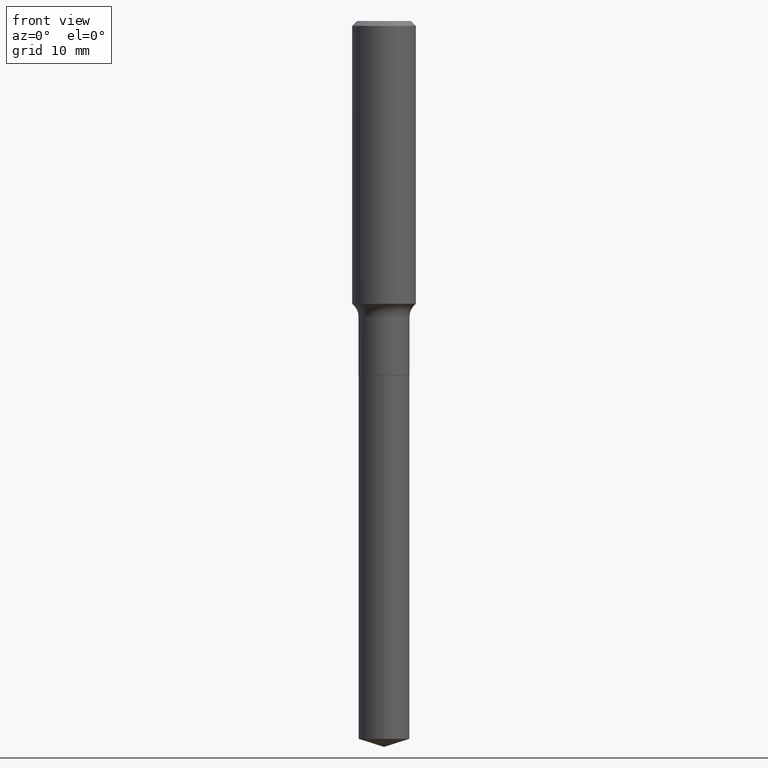
[diagram: clean part render]
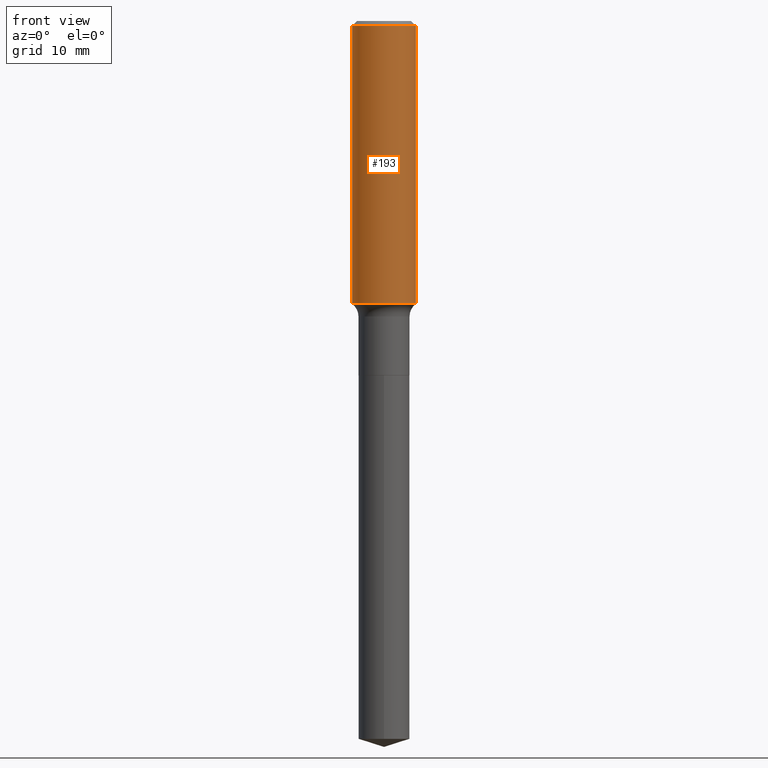
[diagram: same view with one face highlighted and labeled with its STEP entity id]
A machine part, front view. The second image highlights one B-rep face of the part: STEP entity #193.
In plain terms, the highlighted cylindrical surface (edge-blend (fillet) strip) has radius 4.0005 mm, axis along (-0, 0, 1).
Its self-contained STEP definition (entity closure, byte-faithful):
#30 = CARTESIAN_POINT ( 'NONE',  ( 5.777420054612421980E-31, -8.248624663016985234E-17, -0.02362500000000015282 ) ) ;
#40 = AXIS2_PLACEMENT_3D ( 'NONE', #30, #130, #403 ) ;
#55 = LINE ( 'NONE', #230, #446 ) ;
#62 = ORIENTED_EDGE ( 'NONE', *, *, #270, .T. ) ;
#68 = DIRECTION ( 'NONE',  ( -2.445468806185136877E-29, 3.491481338843145188E-15, 1.000000000000000000 ) ) ;
#93 = EDGE_LOOP ( 'NONE', ( #132, #400, #62, #274 ) ) ;
#101 = DIRECTION ( 'NONE',  ( 1.000000000000000000, -6.982962677686267499E-15, 0.000000000000000000 ) ) ;
#107 = DIRECTION ( 'NONE',  ( -2.445468806185136597E-29, 3.491481338843145583E-15, 1.000000000000000000 ) ) ;
#121 = FACE_OUTER_BOUND ( 'NONE', #93, .T. ) ;
#127 = VERTEX_POINT ( 'NONE', #200 ) ;
#130 = DIRECTION ( 'NONE',  ( -2.445468806185136597E-29, 3.491481338843145583E-15, 1.000000000000000000 ) ) ;
#131 = CARTESIAN_POINT ( 'NONE',  ( 0.000000000000000000, 0.000000000000000000, 0.000000000000000000 ) ) ;
#132 = ORIENTED_EDGE ( 'NONE', *, *, #301, .F. ) ;
#135 = VECTOR ( 'NONE', #261, 39.37007874015748143 ) ;
#160 = VERTEX_POINT ( 'NONE', #162 ) ;
#162 = CARTESIAN_POINT ( 'NONE',  ( -0.1575000000000000011, -1.358626883343626114E-15, -0.02362500000000015282 ) ) ;
#189 = AXIS2_PLACEMENT_3D ( 'NONE', #457, #107, #101 ) ;
#193 = ADVANCED_FACE ( 'NONE', ( #121 ), #248, .T. ) ;
#200 = CARTESIAN_POINT ( 'NONE',  ( 0.1575000000000000011, -1.182302868365756679E-15, -0.02362500000000015282 ) ) ;
#209 = CARTESIAN_POINT ( 'NONE',  ( -0.1575000000000001954, -3.753872328879240830E-15, -1.395676122764555327 ) ) ;
#230 = CARTESIAN_POINT ( 'NONE',  ( -0.1575000000000000844, 1.119104808822158392E-15, -7.747322767151481189E-30 ) ) ;
#248 = CYLINDRICAL_SURFACE ( 'NONE', #422, 0.1575000000000000844 ) ;
#249 = EDGE_CURVE ( 'NONE', #160, #127, #250, .T. ) ;
#250 = CIRCLE ( 'NONE', #40, 0.1575000000000000011 ) ;
#261 = DIRECTION ( 'NONE',  ( -2.445468806185136877E-29, 3.491481338843145188E-15, 1.000000000000000000 ) ) ;
#263 = CIRCLE ( 'NONE', #189, 0.1575000000000001676 ) ;
#267 = VERTEX_POINT ( 'NONE', #209 ) ;
#270 = EDGE_CURVE ( 'NONE', #361, #127, #371, .T. ) ;
#274 = ORIENTED_EDGE ( 'NONE', *, *, #249, .F. ) ;
#282 = DIRECTION ( 'NONE',  ( 1.000000000000000000, -6.982962677686267499E-15, 4.876176775795936353E-29 ) ) ;
#301 = EDGE_CURVE ( 'NONE', #267, #160, #55, .T. ) ;
#332 = DIRECTION ( 'NONE',  ( -2.445468806185136597E-29, 3.491481338843145583E-15, 1.000000000000000000 ) ) ;
#361 = VERTEX_POINT ( 'NONE', #471 ) ;
#371 = LINE ( 'NONE', #382, #135 ) ;
#382 = CARTESIAN_POINT ( 'NONE',  ( 0.1575000000000000844, -1.099816621735587677E-15, 7.679978421878603638E-30 ) ) ;
#395 = EDGE_CURVE ( 'NONE', #267, #361, #263, .T. ) ;
#400 = ORIENTED_EDGE ( 'NONE', *, *, #395, .T. ) ;
#403 = DIRECTION ( 'NONE',  ( 1.000000000000000000, -6.982962677686265922E-15, 0.000000000000000000 ) ) ;
#422 = AXIS2_PLACEMENT_3D ( 'NONE', #131, #332, #282 ) ;
#446 = VECTOR ( 'NONE', #68, 39.37007874015748143 ) ;
#457 = CARTESIAN_POINT ( 'NONE',  ( 3.413082421758137227E-29, -4.872977137701400011E-15, -1.395676122764555327 ) ) ;
#471 = CARTESIAN_POINT ( 'NONE',  ( 0.1575000000000001954, -5.972793759436989069E-15, -1.395676122764555327 ) ) ;